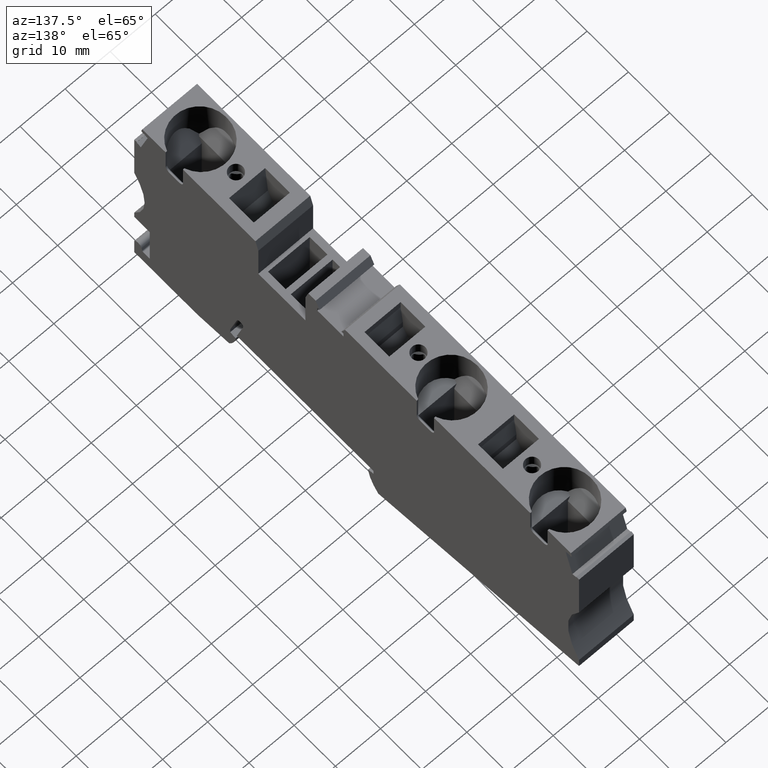
[diagram: clean part render]
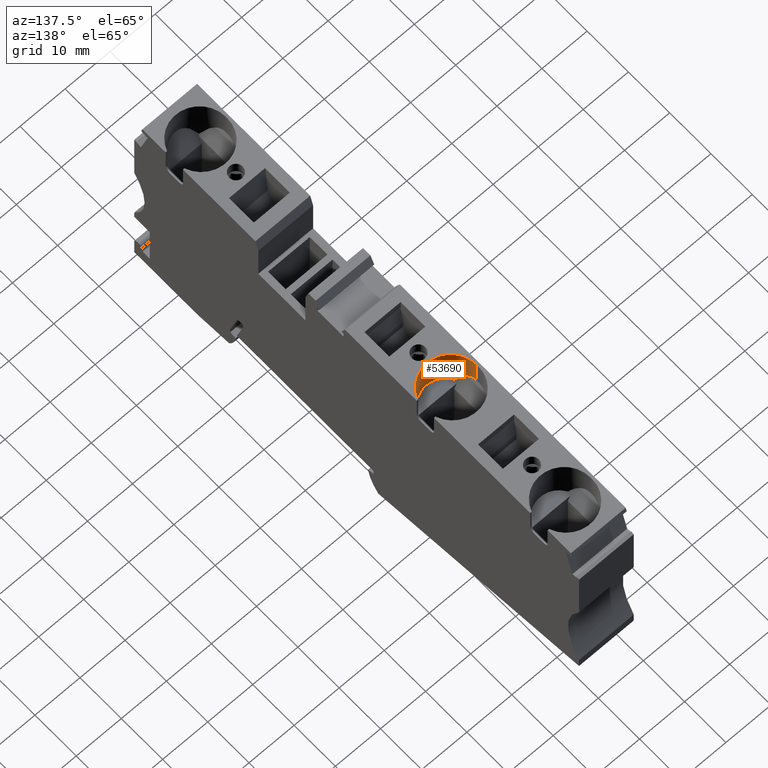
[diagram: same view with one face highlighted and labeled with its STEP entity id]
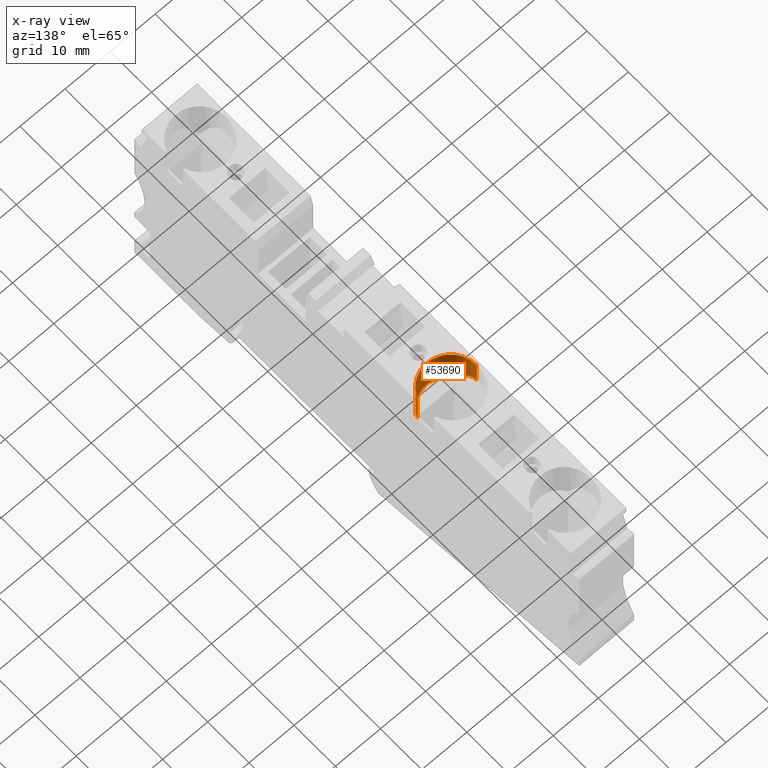
[diagram: x-ray of the same camera — body ghosted, the highlighted face saturated]
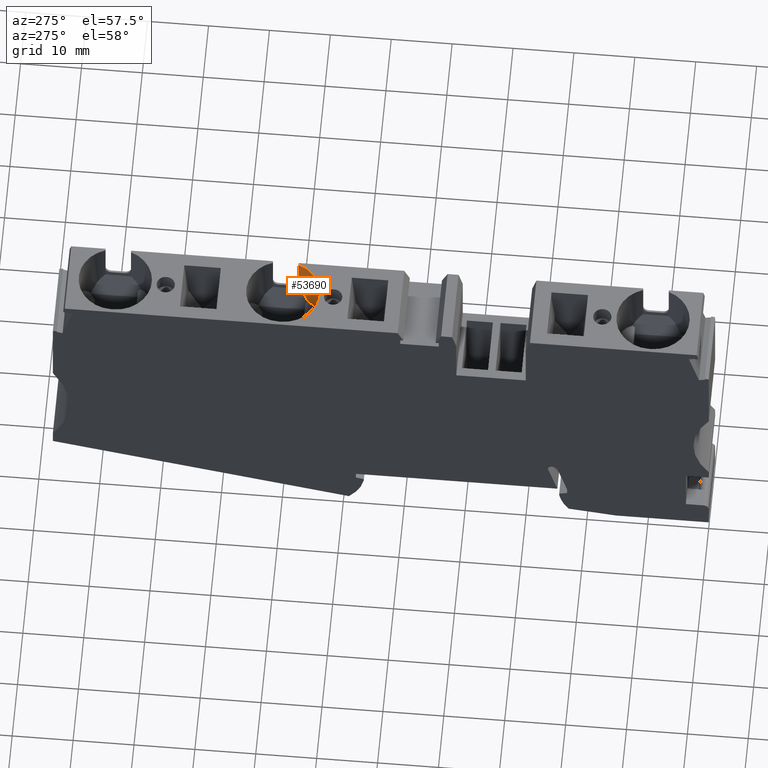
[diagram: same view with one face highlighted and labeled with its STEP entity id]
A machine part, auxiliary view. The second image highlights one B-rep face of the part: STEP entity #53690.
The next image is the same camera in x-ray: the body ghosted, the highlighted face saturated — about 0% of this face is hidden behind the body in this view.
A second angle (auxiliary view) of the same face is appended — the face is thin or edge-on in the first view.
In plain terms, the highlighted cylindrical surface (edge-blend (fillet) strip) has radius 5.8 mm, axis along (-0, -0, 1).
Its self-contained STEP definition (entity closure, byte-faithful):
#49850=CARTESIAN_POINT('',(27.8292389956094,43.7453463527259,-323.1));
#49860=VERTEX_POINT('',#49850);
#49890=CARTESIAN_POINT('',(27.8292389956094,43.7453463527259,-317.3));
#49900=DIRECTION('',(4.18195272016523E-16,-1.,1.22464679914735E-16));
#49910=DIRECTION('',(-1.,-4.18195272016523E-16,0.));
#49920=AXIS2_PLACEMENT_3D('',#49890,#49900,#49910);
#49930=CIRCLE('',#49920,5.8);
#49940=CARTESIAN_POINT('',(25.9292389956094,43.7453463527259,
-311.820036496472));
#49950=VERTEX_POINT('',#49940);
#49960=EDGE_CURVE('',#49950,#49860,#49930,.T.);
#51210=CARTESIAN_POINT('',(25.9292389956094,38.245346352689,
-311.820036496472));
#51220=VERTEX_POINT('',#51210);
#51250=CARTESIAN_POINT('',(25.9292389956095,42.7453463527013,
-311.820036496472));
#51260=DIRECTION('',(-4.18195272016523E-16,1.,-1.22464679914735E-16));
#51270=VECTOR('',#51260,1.);
#51280=LINE('',#51250,#51270);
#51290=CARTESIAN_POINT('',(25.9292389956094,36.4366186318187,
-311.820036496472));
#51300=VERTEX_POINT('',#51290);
#51310=EDGE_CURVE('',#51300,#51220,#51280,.T.);
#52190=CARTESIAN_POINT('',(27.8292389956094,37.8128084729471,-323.1));
#52200=VERTEX_POINT('',#52190);
#52230=CARTESIAN_POINT('',(27.8292389956094,30.7738000239167,-323.1));
#52240=DIRECTION('',(-4.18195272016523E-16,1.,-1.48381532800367E-16));
#52250=VECTOR('',#52240,1.);
#52260=LINE('',#52230,#52250);
#52270=EDGE_CURVE('',#52200,#49860,#52260,.T.);
#52490=CARTESIAN_POINT('',(24.0155237483058,34.3601173528935,
-321.669848511389));
#52500=VERTEX_POINT('',#52490);
#52550=CARTESIAN_POINT('',(27.8292389956094,23.8103698111842,-317.3));
#52560=DIRECTION('',(-1.17550006318713E-16,0.382683432365115,
0.923879532511277));
#52570=DIRECTION('',(-4.03960493755589E-16,0.923879532511277,
-0.382683432365115));
#52580=AXIS2_PLACEMENT_3D('',#52550,#52560,#52570);
#52590=ELLIPSE('',#52580,15.156130392565,5.8);
#52600=EDGE_CURVE('',#52200,#52500,#52590,.T.);
#53090=CARTESIAN_POINT('',(27.8292389956094,-9.23084739161455,-317.3));
#53100=DIRECTION('',(-0.996194698091744,-0.0871557427476782,0.));
#53110=DIRECTION('',(-0.0871557427476782,0.996194698091744,
-1.22932475096808E-16));
#53120=AXIS2_PLACEMENT_3D('',#53090,#53100,#53110);
#53130=ELLIPSE('',#53120,66.5475368248702,5.8);
#53140=CARTESIAN_POINT('',(24.0208509371123,34.2992273062092,
-321.674492015754));
#53150=VERTEX_POINT('',#53140);
#53160=EDGE_CURVE('',#52500,#53150,#53130,.T.);
#53350=CARTESIAN_POINT('',(27.8292389956094,42.7453463527013,-317.3));
#53360=DIRECTION('',(-4.18195272016523E-16,1.,-1.22464679914735E-16));
#53370=DIRECTION('',(-1.,-4.18195272016523E-16,0.));
#53380=AXIS2_PLACEMENT_3D('',#53350,#53360,#53370);
#53390=CYLINDRICAL_SURFACE('',#53380,5.8);
#53400=ORIENTED_EDGE('',*,*,#49960,.F.);
#53410=ORIENTED_EDGE('',*,*,#52270,.T.);
#53420=ORIENTED_EDGE('',*,*,#52600,.F.);
#53430=ORIENTED_EDGE('',*,*,#53160,.F.);
#53440=CARTESIAN_POINT('',(27.8292389956094,32.1004534354574,-317.3));
#53450=DIRECTION('',(0.499999999999998,0.86602540378444,0.));
#53460=DIRECTION('',(0.86602540378444,-0.499999999999998,
2.44929359829471E-16));
#53470=AXIS2_PLACEMENT_3D('',#53440,#53450,#53460);
#53480=ELLIPSE('',#53470,6.69726312259965,5.8);
#53490=CARTESIAN_POINT('',(24.2265868926604,34.1804455968915,
-312.754573966599));
#53500=VERTEX_POINT('',#53490);
#53510=EDGE_CURVE('',#53150,#53500,#53480,.T.);
#53520=ORIENTED_EDGE('',*,*,#53510,.F.);
#53530=CARTESIAN_POINT('',(27.8292389956094,23.2068164202924,-317.3));
#53540=DIRECTION('',(1.60036402094146E-16,-0.382683432365114,
0.923879532511277));
#53550=DIRECTION('',(-3.86362052409052E-16,0.923879532511277,
0.382683432365114));
#53560=AXIS2_PLACEMENT_3D('',#53530,#53540,#53550);
#53570=ELLIPSE('',#53560,15.156130392565,5.8);
#53580=EDGE_CURVE('',#51300,#53500,#53570,.T.);
#53590=ORIENTED_EDGE('',*,*,#53580,.T.);
#53600=ORIENTED_EDGE('',*,*,#51310,.F.);
#53610=CARTESIAN_POINT('',(25.9292389956094,42.7453463527013,
-311.820036496472));
#53620=DIRECTION('',(4.18195272016523E-16,-1.,1.22464679914735E-16));
#53630=VECTOR('',#53620,1.);
#53640=LINE('',#53610,#53630);
#53650=EDGE_CURVE('',#49950,#51220,#53640,.T.);
#53660=ORIENTED_EDGE('',*,*,#53650,.T.);
#53670=EDGE_LOOP('',(#53660,#53600,#53590,#53520,#53430,#53420,#53410,
#53400));
#53680=FACE_OUTER_BOUND('',#53670,.T.);
#53690=ADVANCED_FACE('',(#53680),#53390,.F.);